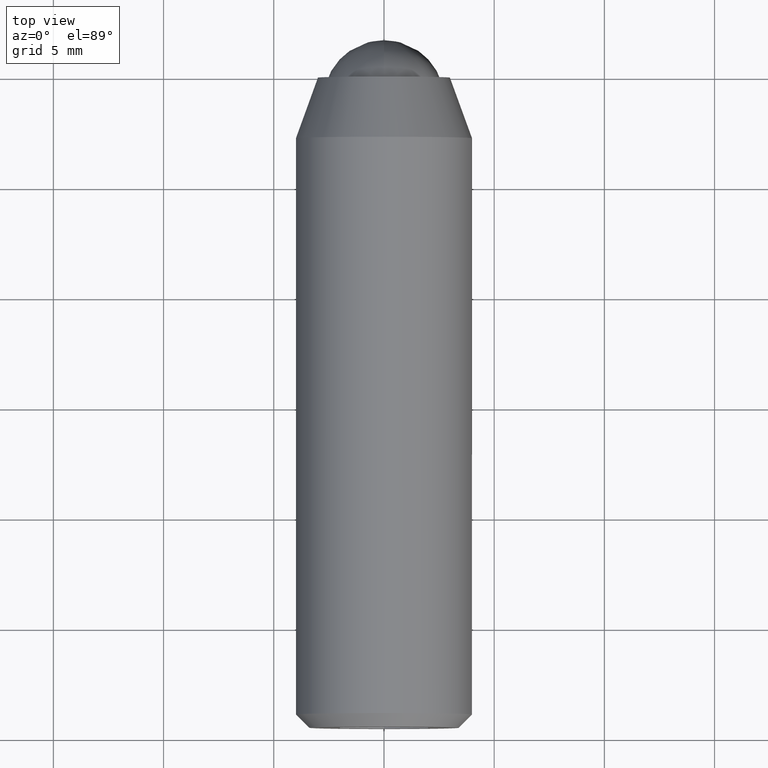
[diagram: clean part render]
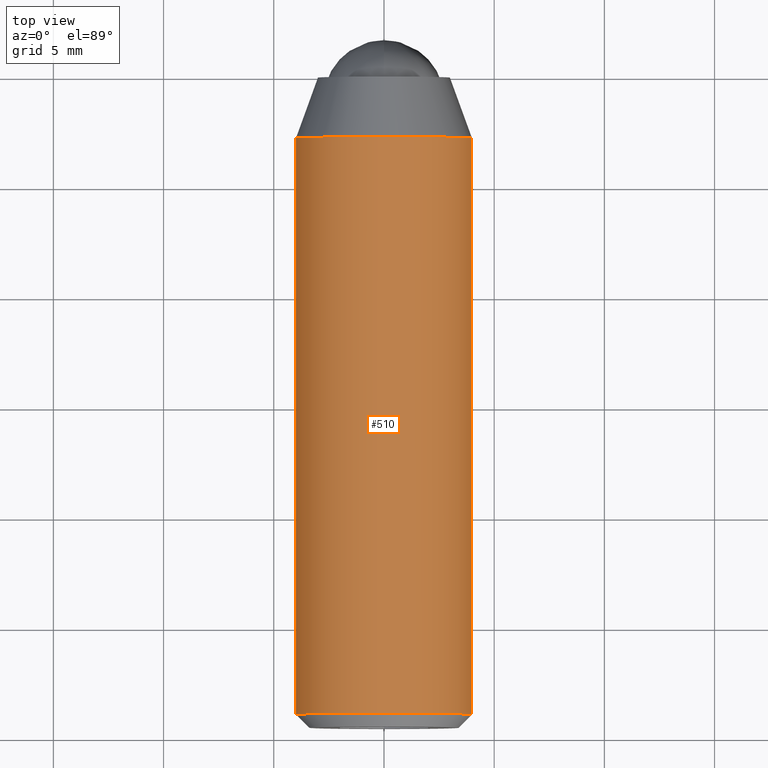
[diagram: same view with one face highlighted and labeled with its STEP entity id]
A machine part, top view. The second image highlights one B-rep face of the part: STEP entity #510.
In plain terms, the highlighted face is a freeform B-spline surface patch.
Its self-contained STEP definition (entity closure, byte-faithful):
#305=CARTESIAN_POINT('',(-3.992539330740283,-2.747476996330162,0.244191895424097));
#306=VERTEX_POINT('',#305);
#312=CARTESIAN_POINT('',(0.0,-2.747477000000000,3.999999999999999));
#313=VERTEX_POINT('',#312);
#314=CARTESIAN_POINT('',(0.0,-2.747477000000000,3.999999999999999));
#315=CARTESIAN_POINT('',(-3.762826404058865,-2.747477000000000,4.000000000000000));
#316=CARTESIAN_POINT('',(-3.992539330740283,-2.747476996330162,0.244191895424097));
#324=(BOUNDED_CURVE()B_SPLINE_CURVE(2,(#314,#315,#316),.UNSPECIFIED.,.F.,.U.)B_SPLINE_CURVE_WITH_KNOTS((3,3),(0.500000000000000,0.739333060026910),.UNSPECIFIED.)CURVE()GEOMETRIC_REPRESENTATION_ITEM()RATIONAL_B_SPLINE_CURVE((1.0,0.719603878720981,0.976072251245035))REPRESENTATION_ITEM(''));
#325=EDGE_CURVE('',#313,#306,#324,.T.);
#327=CARTESIAN_POINT('',(3.973877327542598,-2.747477000000000,0.456397837001159));
#328=VERTEX_POINT('',#327);
#329=CARTESIAN_POINT('',(3.973877327542598,-2.747477000000000,0.456397837001159));
#330=CARTESIAN_POINT('',(3.566896379448351,-2.747477000000000,4.0));
#331=CARTESIAN_POINT('',(0.0,-2.747477000000000,3.999999999999999));
#339=(BOUNDED_CURVE()B_SPLINE_CURVE(2,(#329,#330,#331),.UNSPECIFIED.,.F.,.U.)B_SPLINE_CURVE_WITH_KNOTS((3,3),(0.269767550523078,0.500000000000000),.UNSPECIFIED.)CURVE()GEOMETRIC_REPRESENTATION_ITEM()RATIONAL_B_SPLINE_CURVE((0.957344141540590,0.730265907189595,1.0))REPRESENTATION_ITEM(''));
#340=EDGE_CURVE('',#328,#313,#339,.T.);
#431=CARTESIAN_POINT('',(3.973876773742854,-2.093663925000000,0.456402658961441));
#432=CARTESIAN_POINT('',(3.591260610344325,-2.093663924999998,3.787823839652829));
#433=CARTESIAN_POINT('',(0.244194158139428,-2.093663924999999,3.992539193687466));
#434=CARTESIAN_POINT('',(-3.748345035548039,-2.093663924999998,4.236733351826894));
#435=CARTESIAN_POINT('',(-3.992539193687467,-2.093663924999999,0.244194158139427));
#436=CARTESIAN_POINT('',(3.973876773742854,-29.570158401875009,0.456402658961441));
#437=CARTESIAN_POINT('',(3.591260610344325,-29.570158401875002,3.787823839652829));
#438=CARTESIAN_POINT('',(0.244194158139428,-29.570158401875009,3.992539193687466));
#439=CARTESIAN_POINT('',(-3.748345035548039,-29.570158401875005,4.236733351826894));
#440=CARTESIAN_POINT('',(-3.992539193687467,-29.570158401875009,0.244194158139427));
#448=(BOUNDED_SURFACE()B_SPLINE_SURFACE(2,1,((#431,#436),(#432,#437),(#433,#438),(#434,#439),(#435,#440)),.UNSPECIFIED.,.F.,.F.,.U.)B_SPLINE_SURFACE_WITH_KNOTS((3,2,3),(2,2),(0.0,5.832126958213176,12.459543956182699),(0.0,27.476494476875011),.UNSPECIFIED.)GEOMETRIC_REPRESENTATION_ITEM()RATIONAL_B_SPLINE_SURFACE(((0.938140952186599,0.938140952186599),(0.742253967444162,0.742253967444162),(1.0,1.0),(0.707106781186548,0.707106781186548),(1.0,1.0)))REPRESENTATION_ITEM('')SURFACE());
#449=CARTESIAN_POINT('',(3.973876773740693,-28.899999999999999,0.456402658980265));
#450=VERTEX_POINT('',#449);
#451=CARTESIAN_POINT('',(0.0,-28.899999999999999,3.999999999999999));
#452=VERTEX_POINT('',#451);
#453=CARTESIAN_POINT('',(3.973876773740694,-28.900000000000002,0.456402658980265));
#454=CARTESIAN_POINT('',(3.566892022841640,-28.900000000000006,4.0));
#455=CARTESIAN_POINT('',(0.0,-28.899999999999999,3.999999999999999));
#463=(BOUNDED_CURVE()B_SPLINE_CURVE(2,(#453,#454,#455),.UNSPECIFIED.,.F.,.U.)B_SPLINE_CURVE_WITH_KNOTS((3,3),(0.269767755878213,0.500000000000000),.UNSPECIFIED.)CURVE()GEOMETRIC_REPRESENTATION_ITEM()RATIONAL_B_SPLINE_CURVE((0.957343736457501,0.730266147778101,1.0))REPRESENTATION_ITEM(''));
#464=EDGE_CURVE('',#450,#452,#463,.T.);
#465=ORIENTED_EDGE('',*,*,#464,.F.);
#466=CARTESIAN_POINT('',(3.973877327542598,-2.747477000000000,0.456397837001159));
#467=CARTESIAN_POINT('',(3.973876773740693,-28.899999999999999,0.456402658980265));
#468=QUASI_UNIFORM_CURVE('',1,(#466,#467),.UNSPECIFIED.,.F.,.U.);
#469=EDGE_CURVE('',#328,#450,#468,.T.);
#470=ORIENTED_EDGE('',*,*,#469,.F.);
#471=ORIENTED_EDGE('',*,*,#340,.T.);
#472=ORIENTED_EDGE('',*,*,#325,.T.);
#473=CARTESIAN_POINT('',(-3.992539217398161,-28.899999999999999,0.244193770472403));
#474=VERTEX_POINT('',#473);
#475=CARTESIAN_POINT('',(-3.992539330740283,-2.747476996330162,0.244191895424097));
#476=CARTESIAN_POINT('',(-3.992539217398161,-28.899999999999999,0.244193770472403));
#477=QUASI_UNIFORM_CURVE('',1,(#475,#476),.UNSPECIFIED.,.F.,.U.);
#478=EDGE_CURVE('',#306,#474,#477,.T.);
#479=ORIENTED_EDGE('',*,*,#478,.T.);
#480=CARTESIAN_POINT('',(-3.987669334933531,-28.899999999997480,0.313836382930739));
#481=VERTEX_POINT('',#480);
#482=CARTESIAN_POINT('',(-3.987669334933532,-28.899999999997476,0.313836382930738));
#483=CARTESIAN_POINT('',(-3.990408174028098,-28.899999999999991,0.279036132627693));
#484=CARTESIAN_POINT('',(-3.992539217398161,-28.899999999999999,0.244193770472403));
#492=(BOUNDED_CURVE()B_SPLINE_CURVE(2,(#482,#483,#484),.UNSPECIFIED.,.F.,.U.)B_SPLINE_CURVE_WITH_KNOTS((3,3),(0.736331300631120,0.739332995749818),.UNSPECIFIED.)CURVE()GEOMETRIC_REPRESENTATION_ITEM()RATIONAL_B_SPLINE_CURVE((0.969723356168378,0.972855510527748,0.976072113486913))REPRESENTATION_ITEM(''));
#493=EDGE_CURVE('',#481,#474,#492,.T.);
#494=ORIENTED_EDGE('',*,*,#493,.F.);
#495=CARTESIAN_POINT('',(0.0,-28.899999999999999,3.999999999999999));
#496=CARTESIAN_POINT('',(-3.697561966597211,-28.899999999999995,4.000000000000000));
#497=CARTESIAN_POINT('',(-3.987669334933532,-28.899999999997480,0.313836382930739));
#505=(BOUNDED_CURVE()B_SPLINE_CURVE(2,(#495,#496,#497),.UNSPECIFIED.,.F.,.U.)B_SPLINE_CURVE_WITH_KNOTS((3,3),(0.500000000000000,0.736331300631121),.UNSPECIFIED.)CURVE()GEOMETRIC_REPRESENTATION_ITEM()RATIONAL_B_SPLINE_CURVE((1.0,0.723120658607125,0.969723356168380))REPRESENTATION_ITEM(''));
#506=EDGE_CURVE('',#452,#481,#505,.T.);
#507=ORIENTED_EDGE('',*,*,#506,.F.);
#508=EDGE_LOOP('',(#465,#470,#471,#472,#479,#494,#507));
#509=FACE_OUTER_BOUND('',#508,.T.);
#510=ADVANCED_FACE('',(#509),#448,.T.);